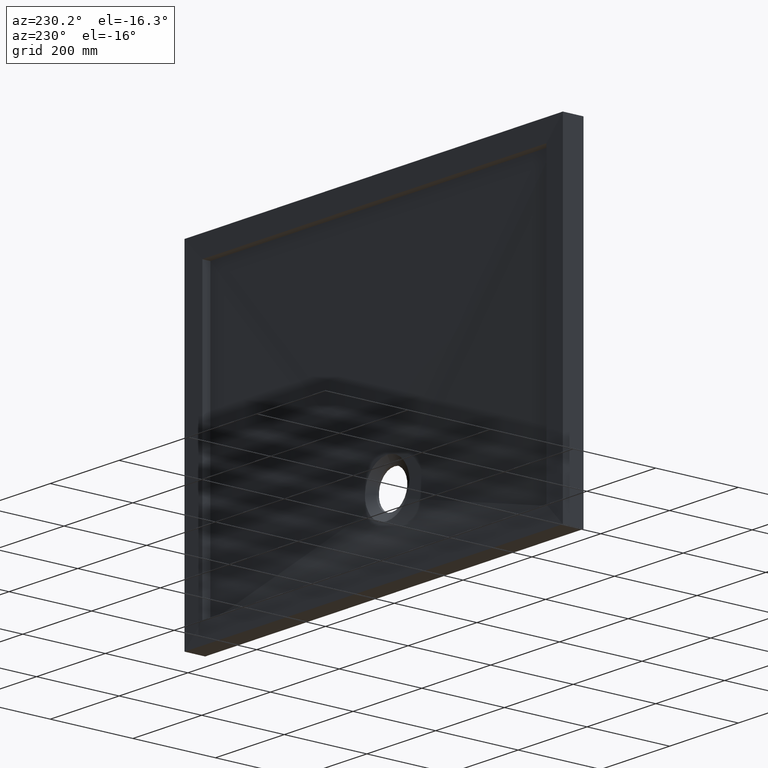
[diagram: clean part render]
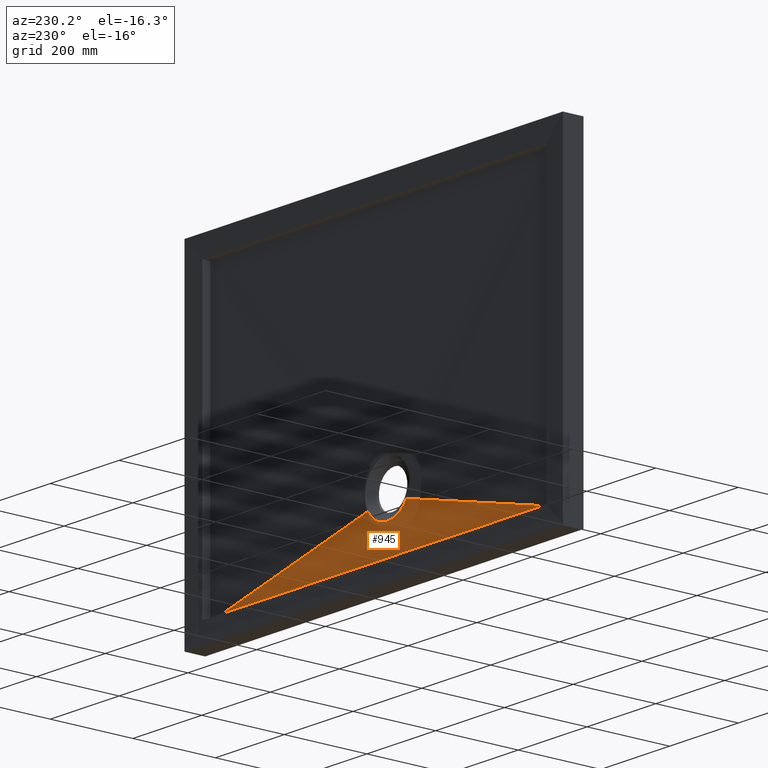
[diagram: same view with one face highlighted and labeled with its STEP entity id]
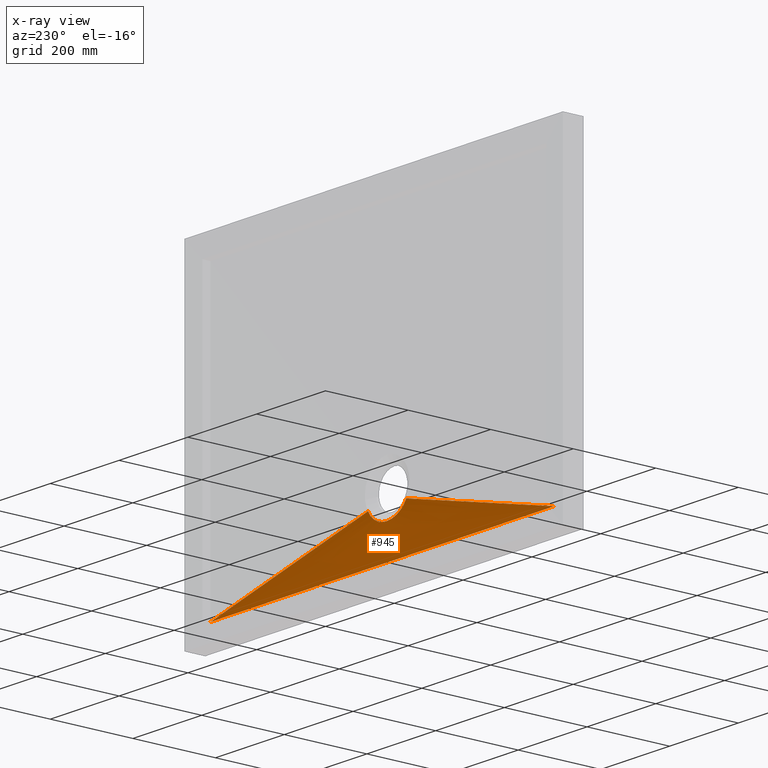
[diagram: x-ray of the same camera — body ghosted, the highlighted face saturated]
A machine part, auxiliary view. The second image highlights one B-rep face of the part: STEP entity #945.
The next image is the same camera in x-ray: the body ghosted, the highlighted face saturated — about 0% of this face is hidden behind the body in this view.
In plain terms, the highlighted face is a freeform B-spline surface patch.
Its self-contained STEP definition (entity closure, byte-faithful):
#9 = VECTOR ( 'NONE', #185, 1000.000000000000100 ) ;
#18 = CARTESIAN_POINT ( 'NONE',  ( -229.1666666666684500, 29.00000000000000000, -349.9999999999999400 ) ) ;
#19 = CARTESIAN_POINT ( 'NONE',  ( -46.64441775329854100, 17.58565103148122000, -245.3263625344834500 ) ) ;
#21 = CARTESIAN_POINT ( 'NONE',  ( 37.27917546631007900, 17.00000000000000700, -234.8514131459147900 ) ) ;
#26 = CARTESIAN_POINT ( 'NONE',  ( -31.63133132208605100, 17.00000000000000400, -240.0557425099831900 ) ) ;
#29 = CARTESIAN_POINT ( 'NONE',  ( -55.68490230141027600, 17.36412464260612900, -232.9106875675516300 ) ) ;
#33 = CARTESIAN_POINT ( 'NONE',  ( -500.0000000000000000, 29.00000000000000000, -350.0000000000000000 ) ) ;
#48 = CARTESIAN_POINT ( 'NONE',  ( -7.852353995823213100, 18.65371198918778400, -264.5338058522342500 ) ) ;
#49 = VERTEX_POINT ( 'NONE', #262 ) ;
#77 = CARTESIAN_POINT ( 'NONE',  ( -33.14832565107268900, 17.00000000000000400, -238.8056048055650300 ) ) ;
#99 = EDGE_CURVE ( 'NONE', #960, #694, #821, .T. ) ;
#105 = CARTESIAN_POINT ( 'NONE',  ( -20.83333333333570500, 28.99999999999999600, -350.0000000000000600 ) ) ;
#113 = CARTESIAN_POINT ( 'NONE',  ( -500.0000000000000000, 29.00000000000000000, -350.0000000000000000 ) ) ;
#120 = CARTESIAN_POINT ( 'NONE',  ( -8.795224814242942600, 17.00000000000000400, -250.2841846493786900 ) ) ;
#141 = CARTESIAN_POINT ( 'NONE',  ( -41.66666666666895200, 29.00000000000000000, -350.0000000000000000 ) ) ;
#153 = CARTESIAN_POINT ( 'NONE',  ( -12.33729984078017600, 18.58963530571646300, -263.8284594817133100 ) ) ;
#156 = CARTESIAN_POINT ( 'NONE',  ( 33.14832565107268900, 17.00000000000000000, -238.8056048055650500 ) ) ;
#166 = CARTESIAN_POINT ( 'NONE',  ( -416.6666666666673100, 29.00000000000000000, -350.0000000000000000 ) ) ;
#185 = DIRECTION ( 'NONE',  ( -0.9666765704192132900, -0.02531565580952043600, 0.2547460024681088000 ) ) ;
#187 = EDGE_CURVE ( 'NONE', #552, #835, #456, .T. ) ;
#196 = CARTESIAN_POINT ( 'NONE',  ( 416.6666666666661200, 29.00000000000000400, -350.0000000000000000 ) ) ;
#198 = VERTEX_POINT ( 'NONE', #865 ) ;
#208 = CARTESIAN_POINT ( 'NONE',  ( 229.1666666666653200, 28.99999999999999600, -350.0000000000000000 ) ) ;
#215 = CARTESIAN_POINT ( 'NONE',  ( 28.39588175895279300, 17.00000000000000400, -242.4108185297716900 ) ) ;
#227 = CARTESIAN_POINT ( 'NONE',  ( -26.67739067076179900, 17.00000000000000400, -243.5156458048148000 ) ) ;
#228 = CARTESIAN_POINT ( 'NONE',  ( 39.68428278191557700, 16.99999999999999600, -232.0860658510845000 ) ) ;
#234 = CARTESIAN_POINT ( 'NONE',  ( -37.27917546631007900, 16.99999999999999600, -234.8514131459147300 ) ) ;
#236 = B_SPLINE_CURVE_WITH_KNOTS ( 'NONE', 3,
 ( #320, #334, #401, #365 ),
 .UNSPECIFIED., .F., .F.,
 ( 4, 4 ),
 ( 0.0000000000000000000, 0.01309867938330680100 ),
 .UNSPECIFIED. ) ;
#249 = CARTESIAN_POINT ( 'NONE',  ( 500.0000000000000000, 29.00000000000000000, -350.0000000000000000 ) ) ;
#252 = CARTESIAN_POINT ( 'NONE',  ( -23.05882569981314500, 17.00000000000000400, -245.5366353627074400 ) ) ;
#253 = CARTESIAN_POINT ( 'NONE',  ( 35.97221617720919800, 17.00000000000000400, -236.2033993030405300 ) ) ;
#262 = CARTESIAN_POINT ( 'NONE',  ( -55.68490230141027600, 17.36412464260612900, -232.9106875675516300 ) ) ;
#267 = EDGE_CURVE ( 'NONE', #49, #960, #689, .T. ) ;
#273 = B_SPLINE_SURFACE_WITH_KNOTS ( 'NONE', 3, 1, ( 
 ( #113, #733 ),
 ( #896, #533 ),
 ( #774, #1041 ),
 ( #166, #234 ),
 ( #893, #829 ),
 ( #985, #77 ),
 ( #412, #26 ),
 ( #395, #491 ),
 ( #828, #227 ),
 ( #18, #252 ),
 ( #679, #584 ),
 ( #321, #579 ),
 ( #754, #902 ),
 ( #447, #536 ),
 ( #356, #120 ),
 ( #141, #302 ),
 ( #105, #903 ),
 ( #513, #605 ),
 ( #688, #817 ),
 ( #599, #580 ),
 ( #530, #520 ),
 ( #506, #897 ),
 ( #592, #532 ),
 ( #479, #805 ),
 ( #208, #307 ),
 ( #547, #567 ),
 ( #907, #215 ),
 ( #541, #759 ),
 ( #898, #156 ),
 ( #301, #253 ),
 ( #196, #21 ),
 ( #784, #228 ),
 ( #1044, #991 ),
 ( #249, #383 ) ),
 .UNSPECIFIED., .F., .F., .F.,
 ( 4, 2, 2, 2, 2, 2, 2, 2, 2, 2, 2, 2, 2, 2, 2, 2, 4 ),
 ( 2, 2 ),
 ( 0.0000000000000000000, 0.06250000000000005600, 0.1250000000000001100, 0.1875000000000001700, 0.2500000000000001100, 0.3125000000000001100, 0.3750000000000000600, 0.4375000000000002200, 0.5000000000000000000, 0.5625000000000004400, 0.6250000000000006700, 0.6875000000000006700, 0.7500000000000005600, 0.8125000000000004400, 0.8750000000000003300, 0.9375000000000001100, 1.000000000000000000 ),
 ( 0.0000000000000000000, 1.000000000000000000 ),
 .UNSPECIFIED. ) ;
#275 = CARTESIAN_POINT ( 'NONE',  ( -166.6666666666666900, 28.99999999999991500, -350.0000000000000000 ) ) ;
#276 = CARTESIAN_POINT ( 'NONE',  ( -31.33023475090110200, 18.06889487438411000, -256.9623430374456900 ) ) ;
#277 = CARTESIAN_POINT ( 'NONE',  ( -48.17256978410772200, 17.54700538379253100, -243.6394720453314700 ) ) ;
#286 = CARTESIAN_POINT ( 'NONE',  ( 166.6666666666666900, 28.99999999999991500, -350.0000000000000000 ) ) ;
#293 = CARTESIAN_POINT ( 'NONE',  ( -500.0000000000000000, 29.00000000000000000, -350.0000000000000000 ) ) ;
#300 = LINE ( 'NONE', #309, #9 ) ;
#301 = CARTESIAN_POINT ( 'NONE',  ( 395.8333333333326900, 29.00000000000000000, -350.0000000000000000 ) ) ;
#302 = CARTESIAN_POINT ( 'NONE',  ( -4.425493543372232000, 17.00000000000001800, -250.8553852830106100 ) ) ;
#307 = CARTESIAN_POINT ( 'NONE',  ( 23.05882569981313100, 17.00000000000000000, -245.5366353627074400 ) ) ;
#309 = CARTESIAN_POINT ( 'NONE',  ( 270.8904139732355800, 23.00000000000000000, -289.6232897812648700 ) ) ;
#310 = CARTESIAN_POINT ( 'NONE',  ( -53.52113663204332300, 17.40928906739685500, -236.7255291940533400 ) ) ;
#320 = CARTESIAN_POINT ( 'NONE',  ( 55.68490230141027600, 17.36412464260612900, -232.9106875675516300 ) ) ;
#321 = CARTESIAN_POINT ( 'NONE',  ( -166.6666666666687300, 29.00000000000000400, -350.0000000000000000 ) ) ;
#322 = CARTESIAN_POINT ( 'NONE',  ( -270.8904139732355800, 23.00000000000000000, -289.6232897812648700 ) ) ;
#323 = CARTESIAN_POINT ( 'NONE',  ( -34.28905873235155600, 17.96858821073511300, -255.2668887010856600 ) ) ;
#333 = ORIENTED_EDGE ( 'NONE', *, *, #187, .F. ) ;
#334 = CARTESIAN_POINT ( 'NONE',  ( 53.52113663204334400, 17.40928906739684100, -236.7255291940533400 ) ) ;
#340 = CARTESIAN_POINT ( 'NONE',  ( 2.882930216305701400E-014, 18.69696969696967800, -264.9999999999998900 ) ) ;
#354 = ORIENTED_EDGE ( 'NONE', *, *, #507, .F. ) ;
#356 = CARTESIAN_POINT ( 'NONE',  ( -83.33333333333554500, 29.00000000000000400, -350.0000000000000000 ) ) ;
#360 = CARTESIAN_POINT ( 'NONE',  ( -51.01113406412872600, 17.46625825582806600, -240.2977333082660300 ) ) ;
#365 = CARTESIAN_POINT ( 'NONE',  ( 48.17256978410776500, 17.54700538379253100, -243.6394720453314200 ) ) ;
#376 = B_SPLINE_CURVE_WITH_KNOTS ( 'NONE', 3,
 ( #642, #790, #656, #908, #618, #539, #546, #514, #806, #916, #822, #614, #706, #664, #573, #578, #472, #938, #724, #825, #836, #538 ),
 .UNSPECIFIED., .F., .F.,
 ( 4, 2, 2, 2, 2, 2, 2, 2, 2, 2, 4 ),
 ( 5.003707553108400600E-017, 0.006805588083748363700, 0.01020838212562255600, 0.01361117616749669600, 0.02041676425124489000, 0.02381955829311898500, 0.02722235233499307300, 0.04083352850248950200, 0.04423632254436361800, 0.04763911658623772700, 0.05444470466998596600 ),
 .UNSPECIFIED. ) ;
#383 = CARTESIAN_POINT ( 'NONE',  ( 41.78082794647119900, 17.00000000000000000, -229.2465795625297700 ) ) ;
#395 = CARTESIAN_POINT ( 'NONE',  ( -291.6666666666681100, 29.00000000000000000, -350.0000000000000000 ) ) ;
#401 = CARTESIAN_POINT ( 'NONE',  ( 51.01113406412874700, 17.46625825582806300, -240.2977333082660300 ) ) ;
#412 = CARTESIAN_POINT ( 'NONE',  ( -333.3333333333345100, 29.00000000000000400, -350.0000000000000000 ) ) ;
#416 = CARTESIAN_POINT ( 'NONE',  ( 500.0000000000000000, 29.00000000000000000, -350.0000000000000000 ) ) ;
#426 = ORIENTED_EDGE ( 'NONE', *, *, #1043, .F. ) ;
#433 = FACE_OUTER_BOUND ( 'NONE', #873, .T. ) ;
#447 = CARTESIAN_POINT ( 'NONE',  ( -104.1666666666688900, 29.00000000000000400, -350.0000000000000000 ) ) ;
#450 = DIRECTION ( 'NONE',  ( -0.9666765704192132900, 0.02531565580952043600, -0.2547460024681087500 ) ) ;
#456 = B_SPLINE_CURVE_WITH_KNOTS ( 'NONE', 3,
 ( #457, #612, #590, #48, #882, #920, #153, #877, #1026, #875, #867, #863, #276, #323, #969, #850, #1006, #878, #19, #848 ),
 .UNSPECIFIED., .F., .F.,
 ( 4, 2, 2, 2, 2, 2, 2, 2, 2, 4 ),
 ( 0.05444470466998596600, 0.06125049663188741200, 0.06465339261283813100, 0.06805628859378884400, 0.08166787251759172200, 0.08507076849854242100, 0.08847366447949311900, 0.09527945644139460000, 0.1020852484032960800, 0.1088910403651975600 ),
 .UNSPECIFIED. ) ;
#457 = CARTESIAN_POINT ( 'NONE',  ( 2.882930216305701400E-014, 18.69696969696967800, -264.9999999999998900 ) ) ;
#472 = CARTESIAN_POINT ( 'NONE',  ( 11.22354774140933200, 18.60812679458718600, -264.0337686801836400 ) ) ;
#479 = CARTESIAN_POINT ( 'NONE',  ( 208.3333333333319500, 28.99999999999999600, -350.0000000000000000 ) ) ;
#491 = CARTESIAN_POINT ( 'NONE',  ( -28.39588175895281100, 17.00000000000000400, -242.4108185297717200 ) ) ;
#506 = CARTESIAN_POINT ( 'NONE',  ( 145.8333333333317800, 29.00000000000000000, -350.0000000000000000 ) ) ;
#507 = EDGE_CURVE ( 'NONE', #694, #198, #300, .T. ) ;
#513 = CARTESIAN_POINT ( 'NONE',  ( 20.83333333333103400, 28.99999999999999600, -350.0000000000000000 ) ) ;
#514 = CARTESIAN_POINT ( 'NONE',  ( 36.19633202059777900, 17.90376432460685400, -254.0368056332296800 ) ) ;
#520 = CARTESIAN_POINT ( 'NONE',  ( 10.95210479429230700, 17.00000000000000000, -249.8576576841734900 ) ) ;
#522 = EDGE_CURVE ( 'NONE', #198, #639, #236, .T. ) ;
#530 = CARTESIAN_POINT ( 'NONE',  ( 104.1666666666649400, 28.99999999999999600, -350.0000000000000000 ) ) ;
#532 = CARTESIAN_POINT ( 'NONE',  ( 17.20878591624603600, 17.00000000000000000, -248.0562286110977900 ) ) ;
#533 = CARTESIAN_POINT ( 'NONE',  ( -40.78250579882019600, 17.00000000000000700, -230.6727540591741400 ) ) ;
#536 = CARTESIAN_POINT ( 'NONE',  ( -10.95210479429230700, 16.99999999999999300, -249.8576576841733800 ) ) ;
#538 = CARTESIAN_POINT ( 'NONE',  ( 2.882930216305701400E-014, 18.69696969696967800, -264.9999999999998900 ) ) ;
#539 = CARTESIAN_POINT ( 'NONE',  ( 39.86168687478212300, 17.78469138401007800, -251.3550270867458500 ) ) ;
#541 = CARTESIAN_POINT ( 'NONE',  ( 333.3333333333324000, 28.99999999999999600, -350.0000000000000000 ) ) ;
#546 = CARTESIAN_POINT ( 'NONE',  ( 38.95689908300374100, 17.81362265916697000, -252.0446704047000700 ) ) ;
#547 = CARTESIAN_POINT ( 'NONE',  ( 270.8333333333321200, 28.99999999999999600, -350.0000000000000000 ) ) ;
#552 = VERTEX_POINT ( 'NONE', #340 ) ;
#567 = CARTESIAN_POINT ( 'NONE',  ( 26.67739067076177400, 17.00000000000000400, -243.5156458048147700 ) ) ;
#573 = CARTESIAN_POINT ( 'NONE',  ( 17.87336883699558900, 18.48591221377430900, -262.6577924914617500 ) ) ;
#578 = CARTESIAN_POINT ( 'NONE',  ( 12.34212150479824100, 18.58955017451860700, -263.8275062481190500 ) ) ;
#579 = CARTESIAN_POINT ( 'NONE',  ( -17.20878591624605000, 17.00000000000000400, -248.0562286110976800 ) ) ;
#580 = CARTESIAN_POINT ( 'NONE',  ( 8.795224814242923000, 17.00000000000000000, -250.2841846493786900 ) ) ;
#584 = CARTESIAN_POINT ( 'NONE',  ( -21.15875785157165700, 17.00000000000000000, -246.4526682464186000 ) ) ;
#590 = CARTESIAN_POINT ( 'NONE',  ( -4.487634344681214100, 18.68606709574386900, -264.8841073159427400 ) ) ;
#592 = CARTESIAN_POINT ( 'NONE',  ( 166.6666666666651800, 29.00000000000000000, -350.0000000000000000 ) ) ;
#599 = CARTESIAN_POINT ( 'NONE',  ( 83.33333333333146700, 28.99999999999999600, -350.0000000000000000 ) ) ;
#605 = CARTESIAN_POINT ( 'NONE',  ( 2.212786136686828900, 16.99999999999999600, -251.0000000000001100 ) ) ;
#612 = CARTESIAN_POINT ( 'NONE',  ( -2.244038569953750600, 18.69696969696968100, -264.9999999999999400 ) ) ;
#614 = CARTESIAN_POINT ( 'NONE',  ( 28.31053328663389100, 18.16994650267976000, -258.5217447707029200 ) ) ;
#618 = CARTESIAN_POINT ( 'NONE',  ( 41.63346690282706000, 17.72958177222664800, -249.9294234017856100 ) ) ;
#639 = VERTEX_POINT ( 'NONE', #956 ) ;
#642 = CARTESIAN_POINT ( 'NONE',  ( 48.17256978410776500, 17.54700538379253100, -243.6394720453314200 ) ) ;
#645 = ORIENTED_EDGE ( 'NONE', *, *, #653, .F. ) ;
#653 = EDGE_CURVE ( 'NONE', #639, #552, #376, .T. ) ;
#656 = CARTESIAN_POINT ( 'NONE',  ( 45.03474200916617300, 17.62931044728062300, -246.9256668492626800 ) ) ;
#664 = CARTESIAN_POINT ( 'NONE',  ( 22.14340974721719100, 18.36697383928643400, -261.2775131351009500 ) ) ;
#679 = CARTESIAN_POINT ( 'NONE',  ( -208.3333333333352200, 29.00000000000000400, -349.9999999999999400 ) ) ;
#681 = CARTESIAN_POINT ( 'NONE',  ( 500.0000000000000000, 29.00000000000000000, -350.0000000000000000 ) ) ;
#688 = CARTESIAN_POINT ( 'NONE',  ( 41.66666666666452600, 28.99999999999999600, -350.0000000000000000 ) ) ;
#689 = LINE ( 'NONE', #322, #742 ) ;
#694 = VERTEX_POINT ( 'NONE', #681 ) ;
#706 = CARTESIAN_POINT ( 'NONE',  ( 27.29068716526955600, 18.20335475693750000, -259.0041092403814100 ) ) ;
#714 = B_SPLINE_CURVE_WITH_KNOTS ( 'NONE', 3,
 ( #277, #360, #310, #29 ),
 .UNSPECIFIED., .F., .F.,
 ( 4, 4 ),
 ( 0.0000000000000000000, 0.01309867938330686200 ),
 .UNSPECIFIED. ) ;
#724 = CARTESIAN_POINT ( 'NONE',  ( 7.855682200312331900, 18.65367607925594500, -264.5334159711949800 ) ) ;
#727 = ORIENTED_EDGE ( 'NONE', *, *, #522, .F. ) ;
#728 = ORIENTED_EDGE ( 'NONE', *, *, #267, .F. ) ;
#733 = CARTESIAN_POINT ( 'NONE',  ( -41.78082794647119900, 17.00000000000000000, -229.2465795625298000 ) ) ;
#742 = VECTOR ( 'NONE', #450, 1000.000000000000100 ) ;
#754 = CARTESIAN_POINT ( 'NONE',  ( -145.8333333333354700, 29.00000000000000400, -350.0000000000000000 ) ) ;
#759 = CARTESIAN_POINT ( 'NONE',  ( 31.63133132208602300, 17.00000000000000700, -240.0557425099832200 ) ) ;
#774 = CARTESIAN_POINT ( 'NONE',  ( -458.3333333333336600, 29.00000000000000000, -350.0000000000000000 ) ) ;
#784 = CARTESIAN_POINT ( 'NONE',  ( 458.3333333333330300, 29.00000000000000400, -350.0000000000000000 ) ) ;
#790 = CARTESIAN_POINT ( 'NONE',  ( 46.64446427953731000, 17.58564985487275200, -245.3263111752808600 ) ) ;
#805 = CARTESIAN_POINT ( 'NONE',  ( 21.15875785157163900, 16.99999999999999600, -246.4526682464187100 ) ) ;
#806 = CARTESIAN_POINT ( 'NONE',  ( 34.29051941955881900, 17.96853842588480200, -255.2659374647791700 ) ) ;
#809 = ORIENTED_EDGE ( 'NONE', *, *, #99, .F. ) ;
#817 = CARTESIAN_POINT ( 'NONE',  ( 4.425493543372211600, 17.00000000000000400, -250.8553852830106100 ) ) ;
#821 = B_SPLINE_CURVE_WITH_KNOTS ( 'NONE', 3,
 ( #293, #275, #286, #416 ),
 .UNSPECIFIED., .F., .F.,
 ( 4, 4 ),
 ( 0.0000000000000000000, 1.000000000000000000 ),
 .UNSPECIFIED. ) ;
#822 = CARTESIAN_POINT ( 'NONE',  ( 30.33070018689233600, 18.10270219042383400, -257.5006915797866900 ) ) ;
#825 = CARTESIAN_POINT ( 'NONE',  ( 4.488385455655914800, 18.68606767210384200, -264.8841157370262600 ) ) ;
#828 = CARTESIAN_POINT ( 'NONE',  ( -270.8333333333349100, 29.00000000000000000, -349.9999999999999400 ) ) ;
#829 = CARTESIAN_POINT ( 'NONE',  ( -35.97221617720919100, 17.00000000000000000, -236.2033993030404100 ) ) ;
#835 = VERTEX_POINT ( 'NONE', #994 ) ;
#836 = CARTESIAN_POINT ( 'NONE',  ( 2.243971346265235800, 18.69696969696968100, -265.0000000000000600 ) ) ;
#848 = CARTESIAN_POINT ( 'NONE',  ( -48.17256978410772200, 17.54700538379253100, -243.6394720453314700 ) ) ;
#850 = CARTESIAN_POINT ( 'NONE',  ( -39.87664751789337500, 17.78358924744851400, -251.3809785241795700 ) ) ;
#863 = CARTESIAN_POINT ( 'NONE',  ( -30.32888328845468000, 18.10276304861198700, -257.5016332917322200 ) ) ;
#865 = CARTESIAN_POINT ( 'NONE',  ( 55.68490230141027600, 17.36412464260612900, -232.9106875675516300 ) ) ;
#867 = CARTESIAN_POINT ( 'NONE',  ( -28.31020682621942800, 18.16995698903076900, -258.5218863520155400 ) ) ;
#873 = EDGE_LOOP ( 'NONE', ( #727, #354, #809, #728, #426, #333, #645 ) ) ;
#875 = CARTESIAN_POINT ( 'NONE',  ( -27.29093735480006400, 18.20334638784703400, -259.0039852834446500 ) ) ;
#877 = CARTESIAN_POINT ( 'NONE',  ( -17.87443026086904400, 18.48591312898405500, -262.6578331700809500 ) ) ;
#878 = CARTESIAN_POINT ( 'NONE',  ( -45.03460909935802200, 17.62931398035108200, -246.9258027377331400 ) ) ;
#882 = CARTESIAN_POINT ( 'NONE',  ( -8.973814658877135000, 18.64026793592281100, -264.3875698193850200 ) ) ;
#893 = CARTESIAN_POINT ( 'NONE',  ( -395.8333333333341100, 29.00000000000000400, -350.0000000000000000 ) ) ;
#896 = CARTESIAN_POINT ( 'NONE',  ( -479.1666666666668600, 29.00000000000000000, -350.0000000000000000 ) ) ;
#897 = CARTESIAN_POINT ( 'NONE',  ( 15.15893887578453900, 17.00000000000000000, -248.7436272894990700 ) ) ;
#898 = CARTESIAN_POINT ( 'NONE',  ( 354.1666666666658300, 29.00000000000000000, -350.0000000000000000 ) ) ;
#902 = CARTESIAN_POINT ( 'NONE',  ( -15.15893887578454600, 17.00000000000000400, -248.7436272894991600 ) ) ;
#903 = CARTESIAN_POINT ( 'NONE',  ( -2.212786136686834200, 17.00000000000000000, -251.0000000000001100 ) ) ;
#907 = CARTESIAN_POINT ( 'NONE',  ( 291.6666666666655500, 28.99999999999999600, -350.0000000000000000 ) ) ;
#908 = CARTESIAN_POINT ( 'NONE',  ( 42.49896616665502300, 17.70344345804857500, -249.1947601278382900 ) ) ;
#916 = CARTESIAN_POINT ( 'NONE',  ( 31.33319210492045700, 18.06879475045664700, -256.9607054380223900 ) ) ;
#920 = CARTESIAN_POINT ( 'NONE',  ( -11.21650646079761900, 18.60823614445541800, -264.0349785632270100 ) ) ;
#938 = CARTESIAN_POINT ( 'NONE',  ( 8.978227265105454400, 18.64021364818392400, -264.3869784231802700 ) ) ;
#945 = ADVANCED_FACE ( 'NONE', ( #433 ), #273, .F. ) ;
#956 = CARTESIAN_POINT ( 'NONE',  ( 48.17256978410776500, 17.54700538379253100, -243.6394720453314200 ) ) ;
#960 = VERTEX_POINT ( 'NONE', #33 ) ;
#969 = CARTESIAN_POINT ( 'NONE',  ( -36.19544475280842000, 17.90379387354499800, -254.0374106570153600 ) ) ;
#985 = CARTESIAN_POINT ( 'NONE',  ( -354.1666666666677700, 29.00000000000000400, -350.0000000000000000 ) ) ;
#991 = CARTESIAN_POINT ( 'NONE',  ( 40.78250579882016800, 16.99999999999999600, -230.6727540591740300 ) ) ;
#994 = CARTESIAN_POINT ( 'NONE',  ( -48.17256978410772200, 17.54700538379253100, -243.6394720453314700 ) ) ;
#1006 = CARTESIAN_POINT ( 'NONE',  ( -41.65330083669782400, 17.72816670449369900, -249.9514715370847000 ) ) ;
#1026 = CARTESIAN_POINT ( 'NONE',  ( -22.14566068815658500, 18.36690395160609400, -261.2765727599581900 ) ) ;
#1041 = CARTESIAN_POINT ( 'NONE',  ( -39.68428278191559100, 17.00000000000000000, -232.0860658510844700 ) ) ;
#1043 = EDGE_CURVE ( 'NONE', #835, #49, #714, .T. ) ;
#1044 = CARTESIAN_POINT ( 'NONE',  ( 479.1666666666665200, 29.00000000000000400, -350.0000000000000000 ) ) ;